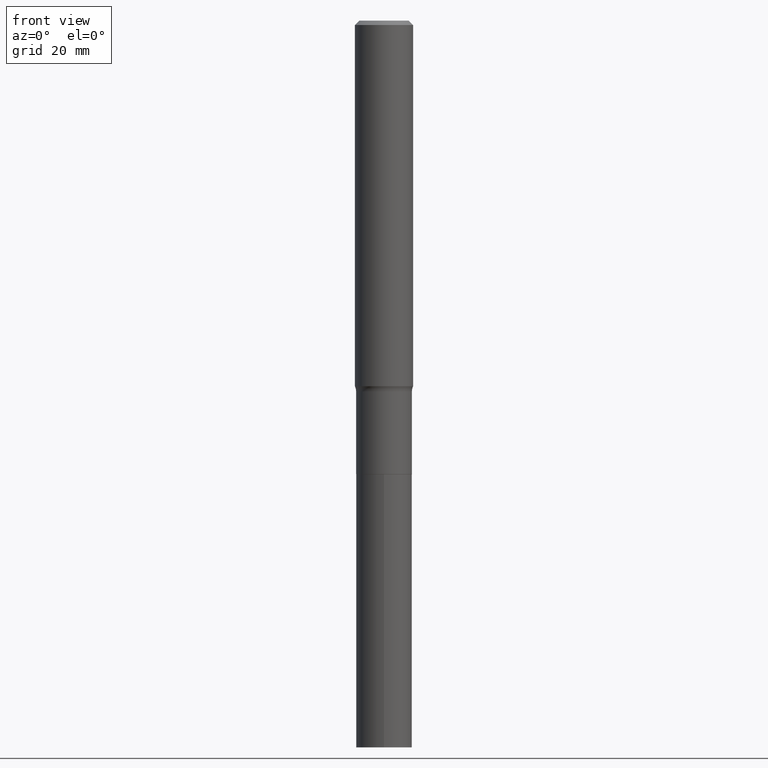
[diagram: clean part render]
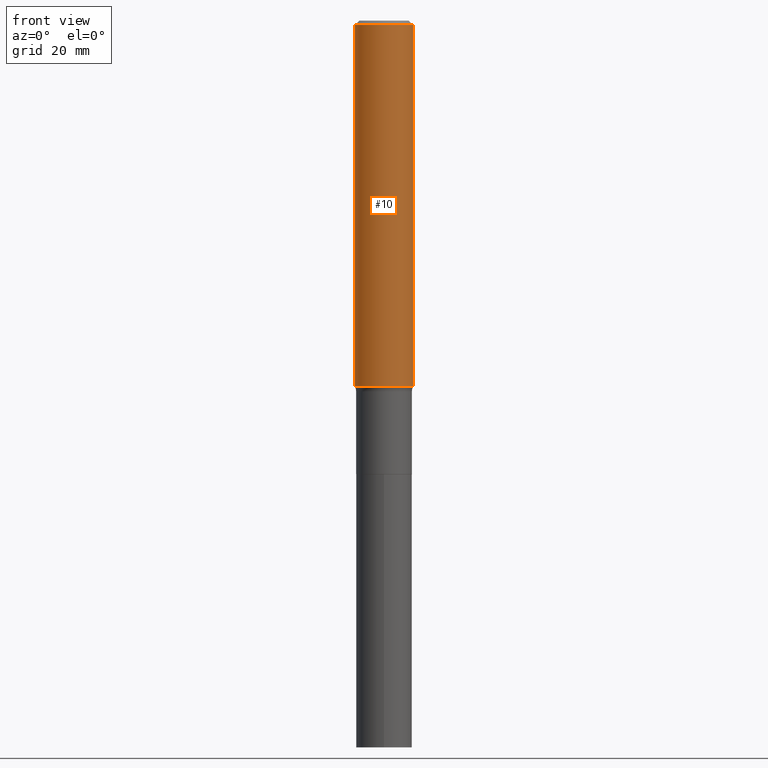
[diagram: same view with one face highlighted and labeled with its STEP entity id]
A machine part, front view. The second image highlights one B-rep face of the part: STEP entity #10.
In plain terms, the highlighted cylindrical surface (edge-blend (fillet) strip) has radius 5 mm, axis along (-0, 0, 1).
Its self-contained STEP definition (entity closure, byte-faithful):
#10 = ADVANCED_FACE ( 'NONE', ( #446 ), #136, .T. ) ;
#19 = CIRCLE ( 'NONE', #286, 0.1968500000000003303 ) ;
#21 = CARTESIAN_POINT ( 'NONE',  ( 7.220858017463207734E-31, -1.030947152326916363E-16, -0.02952750000000018554 ) ) ;
#27 = CARTESIAN_POINT ( 'NONE',  ( 0.1968500000000003303, -1.001964447059907086E-14, -2.476040232929025198 ) ) ;
#44 = VECTOR ( 'NONE', #70, 39.37007874015748143 ) ;
#70 = DIRECTION ( 'NONE',  ( -2.445468806185136877E-29, 3.491481338843145188E-15, 1.000000000000000000 ) ) ;
#79 = VERTEX_POINT ( 'NONE', #416 ) ;
#97 = EDGE_CURVE ( 'NONE', #79, #161, #19, .T. ) ;
#110 = VERTEX_POINT ( 'NONE', #152 ) ;
#114 = CARTESIAN_POINT ( 'NONE',  ( -0.1968500000000000250, -2.975368116020849133E-15, -0.02952750000000018554 ) ) ;
#115 = DIRECTION ( 'NONE',  ( 1.000000000000000000, -6.982962677686261977E-15, 0.000000000000000000 ) ) ;
#118 = CARTESIAN_POINT ( 'NONE',  ( 6.055079152487310970E-29, -8.645048267496527677E-15, -2.476040232929025198 ) ) ;
#136 = CYLINDRICAL_SURFACE ( 'NONE', #371, 0.1968500000000001915 ) ;
#152 = CARTESIAN_POINT ( 'NONE',  ( 0.1968500000000000250, -1.477690918335233294E-15, -0.02952750000000018554 ) ) ;
#160 = EDGE_CURVE ( 'NONE', #161, #110, #290, .T. ) ;
#161 = VERTEX_POINT ( 'NONE', #27 ) ;
#173 = LINE ( 'NONE', #281, #456 ) ;
#208 = DIRECTION ( 'NONE',  ( -2.445468806185136597E-29, 3.491481338843145583E-15, 1.000000000000000000 ) ) ;
#211 = DIRECTION ( 'NONE',  ( 1.000000000000000000, -6.982962677686266711E-15, 4.876176775795935793E-29 ) ) ;
#241 = DIRECTION ( 'NONE',  ( -2.445468806185136597E-29, 3.491481338843145583E-15, 1.000000000000000000 ) ) ;
#270 = DIRECTION ( 'NONE',  ( 1.000000000000000000, -6.982962677686265922E-15, 0.000000000000000000 ) ) ;
#271 = CARTESIAN_POINT ( 'NONE',  ( 0.000000000000000000, 0.000000000000000000, 0.000000000000000000 ) ) ;
#281 = CARTESIAN_POINT ( 'NONE',  ( -0.1968500000000001915, 1.398703375343758577E-15, -9.682923725166790684E-30 ) ) ;
#286 = AXIS2_PLACEMENT_3D ( 'NONE', #118, #241, #115 ) ;
#290 = LINE ( 'NONE', #430, #44 ) ;
#327 = EDGE_CURVE ( 'NONE', #409, #110, #362, .T. ) ;
#338 = DIRECTION ( 'NONE',  ( -2.445468806185136597E-29, 3.491481338843145583E-15, 1.000000000000000000 ) ) ;
#344 = AXIS2_PLACEMENT_3D ( 'NONE', #21, #338, #270 ) ;
#345 = ORIENTED_EDGE ( 'NONE', *, *, #160, .T. ) ;
#362 = CIRCLE ( 'NONE', #344, 0.1968500000000000250 ) ;
#364 = EDGE_CURVE ( 'NONE', #79, #409, #173, .T. ) ;
#370 = ORIENTED_EDGE ( 'NONE', *, *, #327, .F. ) ;
#371 = AXIS2_PLACEMENT_3D ( 'NONE', #271, #208, #211 ) ;
#376 = ORIENTED_EDGE ( 'NONE', *, *, #364, .F. ) ;
#409 = VERTEX_POINT ( 'NONE', #114 ) ;
#416 = CARTESIAN_POINT ( 'NONE',  ( -0.1968500000000003303, -7.246344892152769101E-15, -2.476040232929025198 ) ) ;
#430 = CARTESIAN_POINT ( 'NONE',  ( 0.1968500000000001915, -1.374596203102542989E-15, 9.598753983154309266E-30 ) ) ;
#446 = FACE_OUTER_BOUND ( 'NONE', #462, .T. ) ;
#452 = ORIENTED_EDGE ( 'NONE', *, *, #97, .T. ) ;
#456 = VECTOR ( 'NONE', #463, 39.37007874015748143 ) ;
#462 = EDGE_LOOP ( 'NONE', ( #376, #452, #345, #370 ) ) ;
#463 = DIRECTION ( 'NONE',  ( -2.445468806185136877E-29, 3.491481338843145188E-15, 1.000000000000000000 ) ) ;